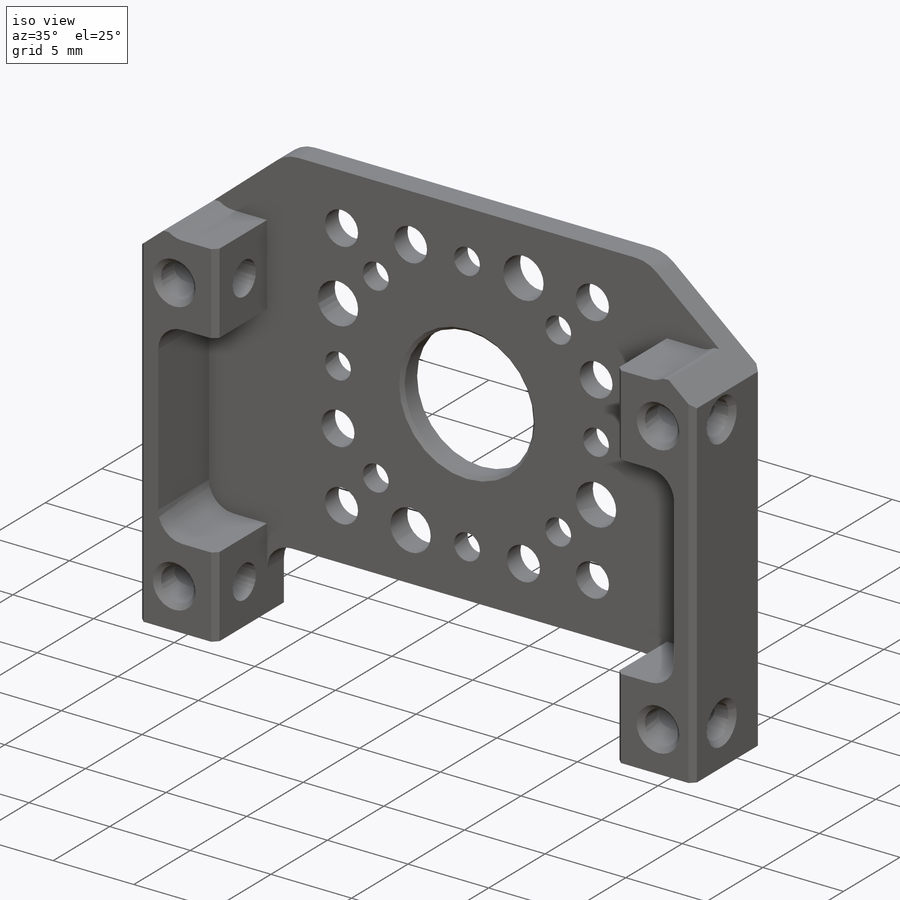
[diagram: iso view]
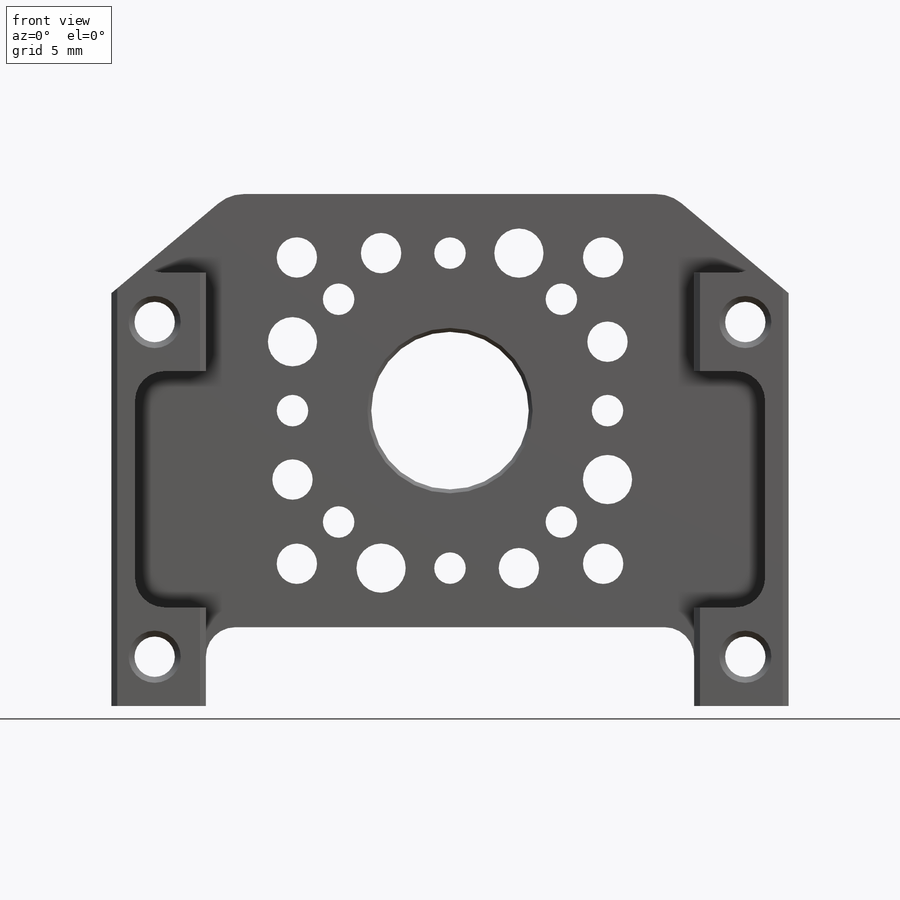
[diagram: front view]
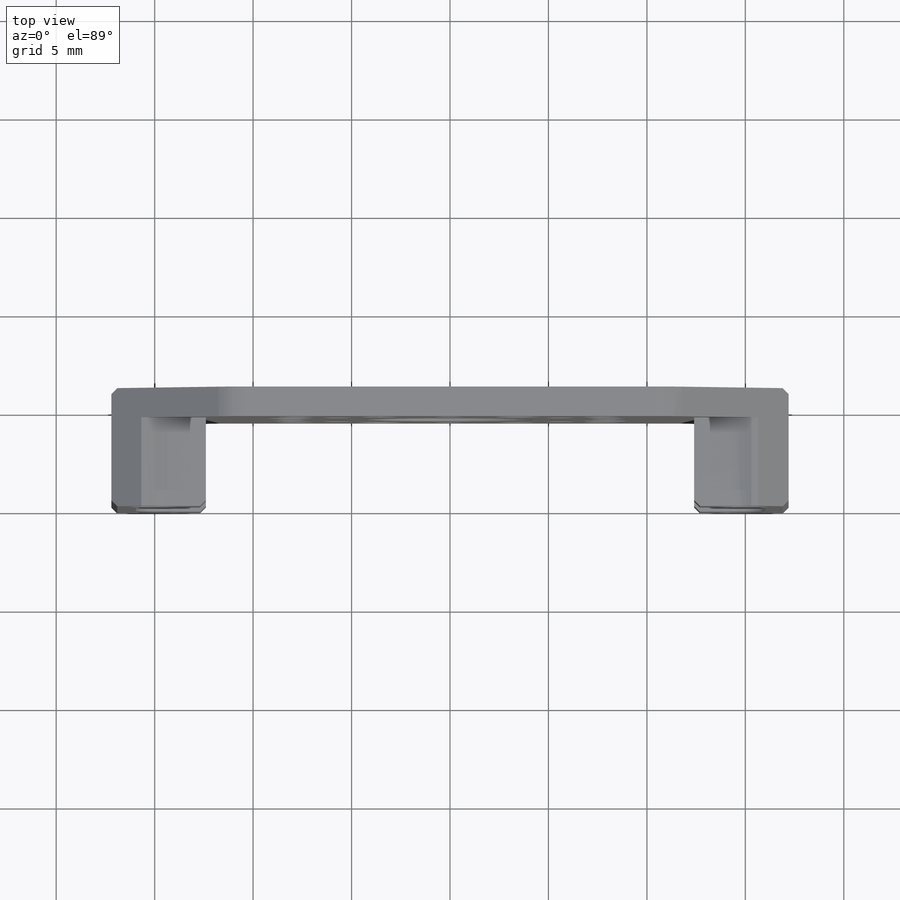
[diagram: top view]
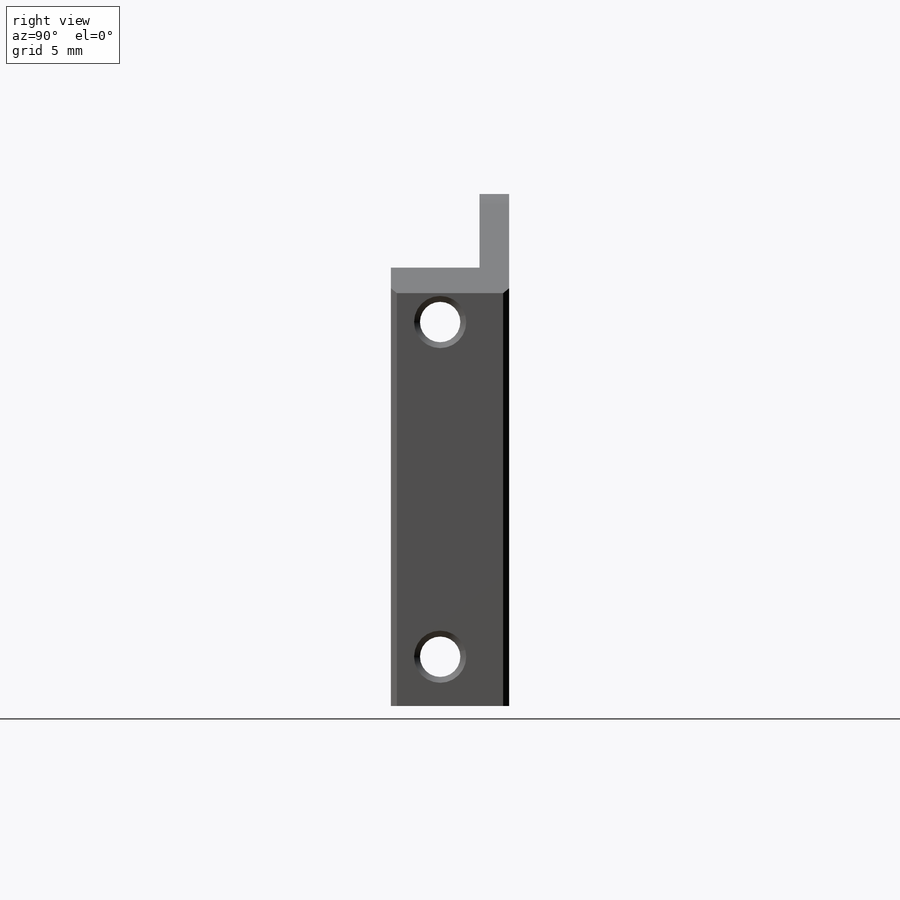
[diagram: right view]
SOLIDWORKS PART (.sldprt)
format: sldprt  version: not decoded by parser v0  size: 591,360 bytes
history: native  units: mm
features: sketch x22, hole x7, extrude x5, cut_extrude x3, chamfer x3, plane x2, fillet x2, material x1 (+13 scaffold rows collapsed)
feature tree (58):
  scaffold x13  (default folders/planes/origin — collapsed)
  material  "Material <not specified>"
  plane  "Plane1"  Offset=15mm
  sketch  "Sketch1"
  extrude  "Boss-Extrude1"  Depth=4.5mm
  sketch  "Sketch2"
  extrude  "Boss-Extrude2"  Depth=1.5mm
  sketch  "Sketch3"
  extrude  "Boss-Extrude3"  Depth=16.965402mm
  plane  "Plane2"  Offset=12.4mm
  sketch  "Sketch4"
  cut_extrude  "Cut-Extrude1"  Depth=24.8mm
  sketch  "Sketch5"
  extrude  "Boss-Extrude4"  Depth=4mm
  sketch  "Sketch6"
  extrude  "Boss-Extrude5"  Depth=4mm
  sketch  "Sketch7"
  cut_extrude  "Cut-Extrude2"  Depth=3.6mm
  sketch  "Sketch8"
  cut_extrude  "Cut-Extrude3"  Depth=4.5mm
  hole  "Ø2.05 (2.05) Diameter Hole1"  Diameter=2.05mm Depth=4.8mm
  sketch  "Sketch10"
  sketch  "Sketch9"  dims[hole-wizard template sketch: 60 standard entries collapsed; hole parameters kept: c18.Thru Hole Depth=4.8mm]
  hole  "Ø2.05 (2.05) Diameter Hole2"  Diameter=2.05mm Depth=4.8mm
  sketch  "Sketch12"
  sketch  "Sketch11"  dims[hole-wizard template sketch: 60 standard entries collapsed; hole parameters kept: c18.Thru Hole Depth=4.8mm]
  hole  "Ø2.5 (2.5) Diameter Hole1"  Diameter=2.5mm Depth=1.50005mm
  sketch  "Sketch14"
  sketch  "Sketch13"  dims[hole-wizard template sketch: 60 standard entries collapsed; hole parameters kept: c18.Thru Hole Depth=~1.50005mm]
  hole  "Ø2.05 (2.05) Diameter Hole3"  Diameter=2.05mm Depth=6.000025mm
  sketch  "Sketch16"
  sketch  "Sketch15"  dims[hole-wizard template sketch: 60 standard entries collapsed; hole parameters kept: c18.Thru Hole Depth=~6.000025mm]
  hole  "Ø1.6 (1.6) Diameter Hole1"  Diameter=1.6mm Depth=6.000025mm
  sketch  "Sketch18"
  sketch  "Sketch17"  dims[hole-wizard template sketch: 60 standard entries collapsed; hole parameters kept: c18.Thru Hole Depth=~6.000025mm]
  hole  "Ø8.0 (8) Diameter Hole1"  Diameter=8mm Depth=1.50005mm
  sketch  "Sketch20"
  sketch  "Sketch19"  dims[hole-wizard template sketch: 60 standard entries collapsed; hole parameters kept: c18.Thru Hole Depth=~1.50005mm]
  hole  "Ø2.05 (2.05) Diameter Hole4"  Diameter=2.05mm Depth=9.5mm
  sketch  "Sketch22"
  sketch  "Sketch21"  dims[hole-wizard template sketch: 47 standard entries collapsed; hole parameters kept: c15.Hole Depth=9.5mm c15.D3=~14.816244mm c15.Drill Angle=180.0deg]
  chamfer  "Chamfer1"  Distance=0.3mm Angle=45deg
  chamfer  "Chamfer2"  Distance=0.199957mm Angle=45.000296deg
  chamfer  "Chamfer3"  Distance=0.224717mm Angle=36.835275deg
  fillet  "Fillet1"  Radius=1.5mm
  fillet  "Fillet2"  Radius=2mm
decode coverage: 27 of 42 modeling features carry decoded parameters
note: ~ marks probable driven/reference dimensions
summary: Diameter pulled from absorbed wizard sketch
note: suppression state not decoded; provenance and decode notes live in map.json
